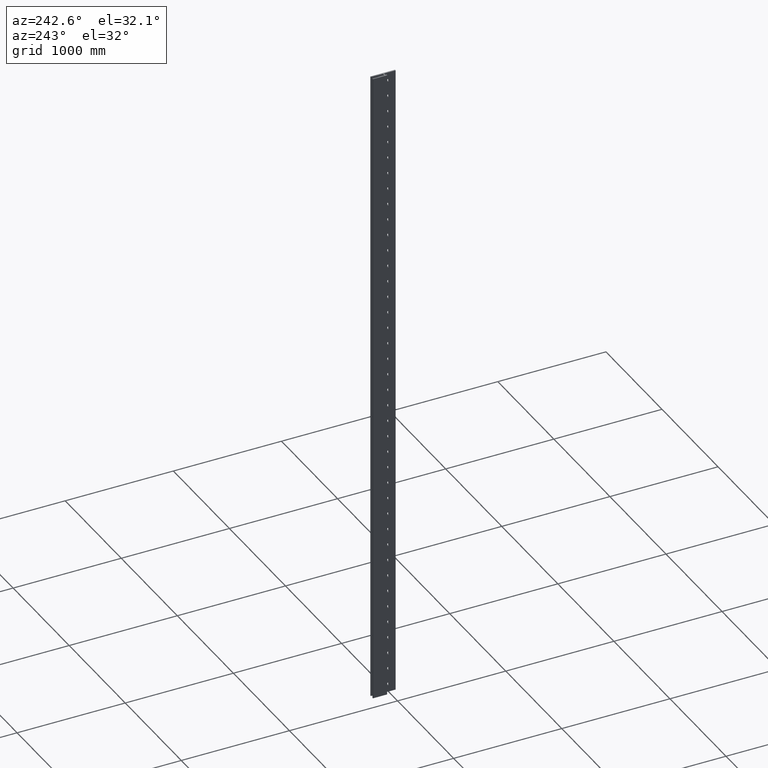
[diagram: clean part render]
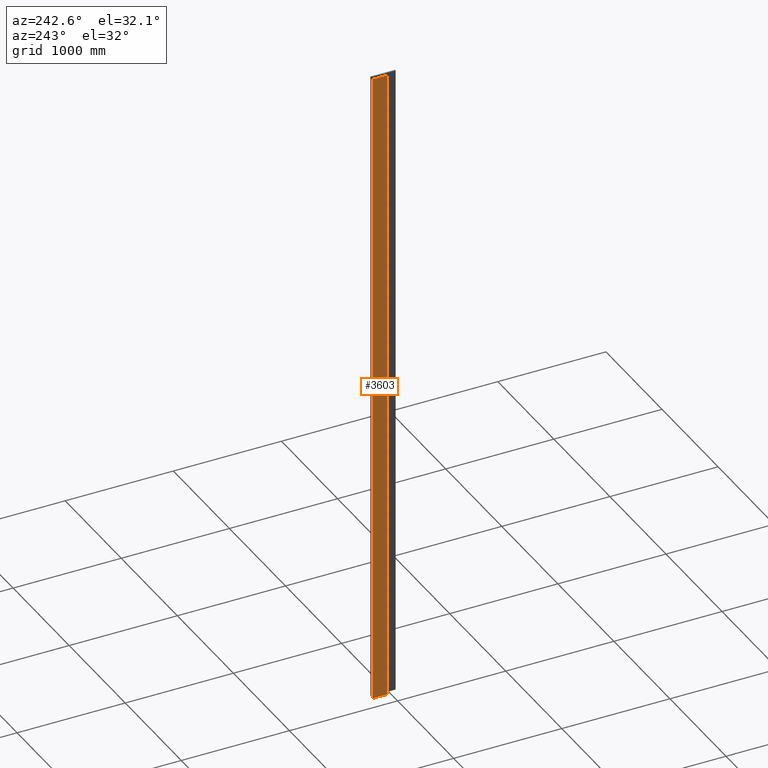
[diagram: same view with one face highlighted and labeled with its STEP entity id]
A machine part, auxiliary view. The second image highlights one B-rep face of the part: STEP entity #3603.
In plain terms, the highlighted planar face has unit normal (-1, 0, 0).
Its self-contained STEP definition (entity closure, byte-faithful):
#199 = ORIENTED_EDGE ( 'NONE', *, *, #17814, .F. ) ;
#779 = DIRECTION ( 'NONE',  ( -0.0000000000000000000, -0.0000000000000000000, -1.000000000000000000 ) ) ;
#1631 = LINE ( 'NONE', #9349, #13879 ) ;
#2059 = CARTESIAN_POINT ( 'NONE',  ( -6.081809028829834900E-006, 97.00178891874917000, -3000.000000000000000 ) ) ;
#2709 = CARTESIAN_POINT ( 'NONE',  ( -6.081809030616498400E-006, 1.120201022393822800E-022, -3000.000000000000000 ) ) ;
#3603 = ADVANCED_FACE ( 'NONE', ( #17464 ), #9964, .T. ) ;
#3819 = CARTESIAN_POINT ( 'NONE',  ( -6.081809028829834900E-006, 97.00178891874917000, 3000.000000000000000 ) ) ;
#3906 = DIRECTION ( 'NONE',  ( -1.000000000000000000, 1.841887860593134700E-017, 0.0000000000000000000 ) ) ;
#4258 = DIRECTION ( 'NONE',  ( 1.841887860593134700E-017, 1.000000000000000000, 0.0000000000000000000 ) ) ;
#4919 = EDGE_LOOP ( 'NONE', ( #199, #17886, #13434, #10206 ) ) ;
#5737 = VECTOR ( 'NONE', #4258, 1000.000000000000000 ) ;
#5742 = VERTEX_POINT ( 'NONE', #8453 ) ;
#8415 = DIRECTION ( 'NONE',  ( -1.841887860593134700E-017, -1.000000000000000000, 0.0000000000000000000 ) ) ;
#8453 = CARTESIAN_POINT ( 'NONE',  ( -6.081809026444590100E-006, 226.5017889187491600, 3000.000000000000000 ) ) ;
#8976 = LINE ( 'NONE', #2709, #5737 ) ;
#9349 = CARTESIAN_POINT ( 'NONE',  ( -6.081809026444590100E-006, 226.5017889187491600, 3000.000000000000000 ) ) ;
#9586 = VERTEX_POINT ( 'NONE', #14485 ) ;
#9761 = CARTESIAN_POINT ( 'NONE',  ( -6.081809030616498400E-006, 1.120201022393822800E-022, 3000.000000000000000 ) ) ;
#9890 = LINE ( 'NONE', #18221, #12674 ) ;
#9964 = PLANE ( 'NONE',  #17271 ) ;
#10206 = ORIENTED_EDGE ( 'NONE', *, *, #15244, .T. ) ;
#10896 = DIRECTION ( 'NONE',  ( -0.0000000000000000000, -0.0000000000000000000, -1.000000000000000000 ) ) ;
#10948 = VERTEX_POINT ( 'NONE', #3819 ) ;
#11354 = VECTOR ( 'NONE', #12676, 1000.000000000000000 ) ;
#12674 = VECTOR ( 'NONE', #779, 1000.000000000000000 ) ;
#12676 = DIRECTION ( 'NONE',  ( 1.841887860593134700E-017, 1.000000000000000000, 0.0000000000000000000 ) ) ;
#13434 = ORIENTED_EDGE ( 'NONE', *, *, #14827, .T. ) ;
#13879 = VECTOR ( 'NONE', #10896, 1000.000000000000000 ) ;
#14485 = CARTESIAN_POINT ( 'NONE',  ( -6.081809026444590100E-006, 226.5017889187491600, -3000.000000000000000 ) ) ;
#14827 = EDGE_CURVE ( 'NONE', #10948, #5742, #18307, .T. ) ;
#15244 = EDGE_CURVE ( 'NONE', #5742, #9586, #1631, .T. ) ;
#16636 = VERTEX_POINT ( 'NONE', #2059 ) ;
#17271 = AXIS2_PLACEMENT_3D ( 'NONE', #18566, #3906, #8415 ) ;
#17464 = FACE_OUTER_BOUND ( 'NONE', #4919, .T. ) ;
#17814 = EDGE_CURVE ( 'NONE', #16636, #9586, #8976, .T. ) ;
#17886 = ORIENTED_EDGE ( 'NONE', *, *, #18897, .F. ) ;
#18221 = CARTESIAN_POINT ( 'NONE',  ( -6.081809028829834900E-006, 97.00178891874917000, 3000.000000000000000 ) ) ;
#18307 = LINE ( 'NONE', #9761, #11354 ) ;
#18566 = CARTESIAN_POINT ( 'NONE',  ( -6.081809030616498400E-006, 1.120201022393822800E-022, 3000.000000000000000 ) ) ;
#18897 = EDGE_CURVE ( 'NONE', #10948, #16636, #9890, .T. ) ;